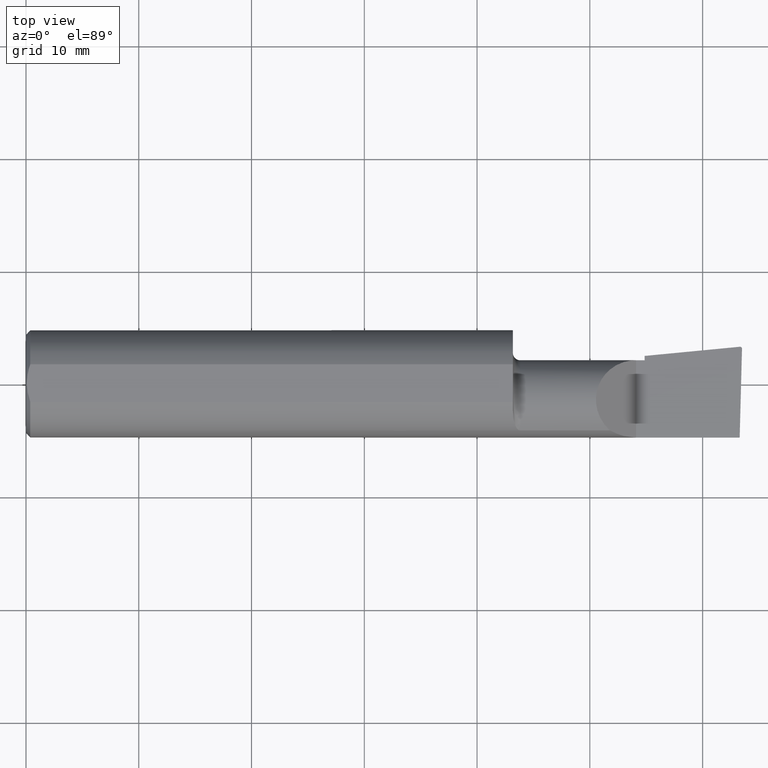
[diagram: clean part render]
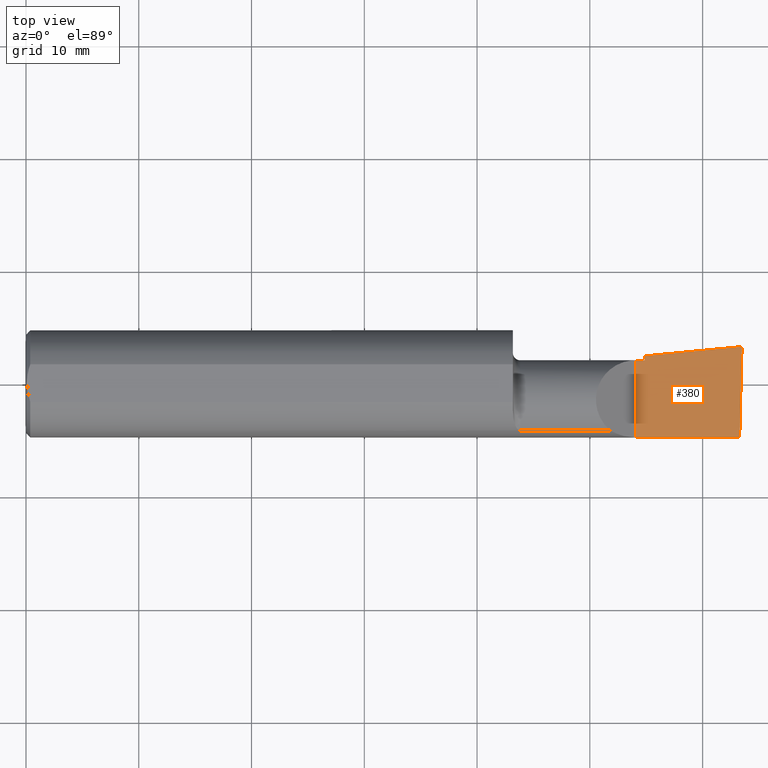
[diagram: same view with one face highlighted and labeled with its STEP entity id]
A machine part, top view. The second image highlights one B-rep face of the part: STEP entity #380.
In plain terms, the highlighted planar face has unit normal (-0, 0, -1).
Its self-contained STEP definition (entity closure, byte-faithful):
#39 = LINE ( 'NONE', #635, #343 ) ;
#48 = CARTESIAN_POINT ( 'NONE',  ( 2.493512870449283714, 0.1299961668063693288, 6.829619984160658046E-17 ) ) ;
#52 = VECTOR ( 'NONE', #591, 39.37007874015748143 ) ;
#65 = ORIENTED_EDGE ( 'NONE', *, *, #684, .F. ) ;
#68 = DIRECTION ( 'NONE',  ( 1.000000000000000000, 6.829619984160658046E-18, 0.000000000000000000 ) ) ;
#71 = CARTESIAN_POINT ( 'NONE',  ( 2.490039159128059953, -0.2497391662021650194, 6.932588350567417155E-17 ) ) ;
#86 = LINE ( 'NONE', #71, #156 ) ;
#93 = CARTESIAN_POINT ( 'NONE',  ( 2.497312560284794092, 0.1299961668063694675, 6.787656272032840287E-17 ) ) ;
#99 = CARTESIAN_POINT ( 'NONE',  ( 2.491672876940991710, -0.1873499999999999888, 6.915950918908297591E-17 ) ) ;
#115 = ORIENTED_EDGE ( 'NONE', *, *, #116, .F. ) ;
#116 = EDGE_CURVE ( 'NONE', #284, #683, #594, .T. ) ;
#128 = PLANE ( 'NONE',  #499 ) ;
#140 = DIRECTION ( 'NONE',  ( -1.000000000000000000, 0.000000000000000000, 1.033731667140896077E-16 ) ) ;
#143 = CARTESIAN_POINT ( 'NONE',  ( 2.493512870449283714, 0.1299961668063693288, 6.829619984160658046E-17 ) ) ;
#150 = CARTESIAN_POINT ( 'NONE',  ( 2.499910038027473025, 0.1272144908750952319, 6.760805322059822821E-17 ) ) ;
#156 = VECTOR ( 'NONE', #247, 39.37007874015748854 ) ;
#160 = CARTESIAN_POINT ( 'NONE',  ( -9.564882787816664242E-19, 0.08264999999999998737, 3.267291166268304703E-16 ) ) ;
#169 = CARTESIAN_POINT ( 'NONE',  ( 2.492906680581862044, 0.1299669910246663562, 6.902945873237403297E-17 ) ) ;
#177 = VECTOR ( 'NONE', #68, 39.37007874015748143 ) ;
#183 = CARTESIAN_POINT ( 'NONE',  ( 2.129999999999999893, -0.2500000000000000555, 1.065442715258197396E-16 ) ) ;
#209 = EDGE_CURVE ( 'NONE', #517, #566, #631, .T. ) ;
#215 = CARTESIAN_POINT ( 'NONE',  ( 2.160000000000000142, 0.09791172361284175563, 3.308097179827818849E-16 ) ) ;
#220 = CARTESIAN_POINT ( 'NONE',  ( 2.493512870449283714, 0.1299961668063693288, 6.829619984160658046E-17 ) ) ;
#236 = ORIENTED_EDGE ( 'NONE', *, *, #422, .T. ) ;
#242 = DIRECTION ( 'NONE',  ( -0.000000000000000000, 1.000000000000000000, -0.000000000000000000 ) ) ;
#247 = DIRECTION ( 'NONE',  ( 0.02617694830779364323, 0.9996573249755593693, -2.665804247635780349E-18 ) ) ;
#255 = CARTESIAN_POINT ( 'NONE',  ( 2.129999999999999893, -0.1873499999999999888, 1.065442715258197396E-16 ) ) ;
#279 = ORIENTED_EDGE ( 'NONE', *, *, #637, .F. ) ;
#284 = VERTEX_POINT ( 'NONE', #675 ) ;
#298 = CARTESIAN_POINT ( 'NONE',  ( 2.500000000000000000, -0.2500000000000000555, 6.829619984160658046E-17 ) ) ;
#304 = LINE ( 'NONE', #183, #354 ) ;
#322 = CARTESIAN_POINT ( 'NONE',  ( 2.499806390372749210, 0.1232563466314183787, 6.833120963331979760E-17 ) ) ;
#343 = VECTOR ( 'NONE', #371, 39.37007874015748143 ) ;
#354 = VECTOR ( 'NONE', #242, 39.37007874015748143 ) ;
#361 = EDGE_CURVE ( 'NONE', #518, #465, #86, .T. ) ;
#371 = DIRECTION ( 'NONE',  ( -1.000000000000000000, -0.000000000000000000, -0.000000000000000000 ) ) ;
#376 = CARTESIAN_POINT ( 'NONE',  ( 2.160000000000000142, -0.2500000000000000555, 1.034430765243970311E-16 ) ) ;
#380 = ADVANCED_FACE ( 'NONE', ( #411 ), #128, .F. ) ;
#391 = EDGE_CURVE ( 'NONE', #573, #566, #671, .T. ) ;
#403 = CARTESIAN_POINT ( 'NONE',  ( 0.5470260790800316464, -0.05740000000000000657, 2.701812985571356346E-16 ) ) ;
#411 = FACE_OUTER_BOUND ( 'NONE', #658, .T. ) ;
#412 = ORIENTED_EDGE ( 'NONE', *, *, #391, .F. ) ;
#414 = CARTESIAN_POINT ( 'NONE',  ( 2.499806390372749210, 0.1232563466314183787, 6.833120963331979760E-17 ) ) ;
#422 = EDGE_CURVE ( 'NONE', #465, #517, #647, .T. ) ;
#429 = LINE ( 'NONE', #376, #52 ) ;
#437 = CARTESIAN_POINT ( 'NONE',  ( 2.493310817358645792, 0.1299961668063693288, 6.829023555897999992E-17 ) ) ;
#446 = VERTEX_POINT ( 'NONE', #255 ) ;
#448 = CARTESIAN_POINT ( 'NONE',  ( 2.493108609909192364, 0.1299864346073983379, 6.831113838336319943E-17 ) ) ;
#465 = VERTEX_POINT ( 'NONE', #414 ) ;
#467 = EDGE_CURVE ( 'NONE', #518, #446, #39, .T. ) ;
#499 = AXIS2_PLACEMENT_3D ( 'NONE', #298, #622, #140 ) ;
#517 = VERTEX_POINT ( 'NONE', #48 ) ;
#518 = VERTEX_POINT ( 'NONE', #99 ) ;
#522 = VECTOR ( 'NONE', #559, 39.37007874015748143 ) ;
#557 = ORIENTED_EDGE ( 'NONE', *, *, #361, .T. ) ;
#559 = DIRECTION ( 'NONE',  ( 0.9953961983671787417, 0.09584575252022459191, -1.028972571603813720E-16 ) ) ;
#566 = VERTEX_POINT ( 'NONE', #169 ) ;
#569 = ORIENTED_EDGE ( 'NONE', *, *, #467, .F. ) ;
#573 = VERTEX_POINT ( 'NONE', #215 ) ;
#591 = DIRECTION ( 'NONE',  ( -6.829619984160658816E-18, 1.000000000000000000, 7.059994452165177242E-34 ) ) ;
#594 = LINE ( 'NONE', #160, #177 ) ;
#622 = DIRECTION ( 'NONE',  ( -1.033731667140896077E-16, 0.000000000000000000, -1.000000000000000000 ) ) ;
#631 =( BOUNDED_CURVE ( )  B_SPLINE_CURVE ( 3, ( #220, #437, #448, #649 ),
 .UNSPECIFIED., .F., .T. ) 
 B_SPLINE_CURVE_WITH_KNOTS ( ( 4, 4 ),
 ( 3.511516179717477648, 3.604018710826077942 ),
 .UNSPECIFIED. ) 
 CURVE ( )  GEOMETRIC_REPRESENTATION_ITEM ( )  RATIONAL_B_SPLINE_CURVE ( ( 1.000000000000000000, 0.9992870672494007511, 0.9992870672494007511, 1.000000000000000000 ) ) 
 REPRESENTATION_ITEM ( '' )  );
#635 = CARTESIAN_POINT ( 'NONE',  ( 3.377502344341257155E-32, -0.1873499999999999610, 3.267291166268304703E-16 ) ) ;
#637 = EDGE_CURVE ( 'NONE', #683, #573, #429, .T. ) ;
#647 =( BOUNDED_CURVE ( )  B_SPLINE_CURVE ( 3, ( #322, #150, #93, #143 ),
 .UNSPECIFIED., .F., .F. ) 
 B_SPLINE_CURVE_WITH_KNOTS ( ( 4, 4 ),
 ( 1.953092279228235029, 3.511516179717477648 ),
 .UNSPECIFIED. ) 
 CURVE ( )  GEOMETRIC_REPRESENTATION_ITEM ( )  RATIONAL_B_SPLINE_CURVE ( ( 1.000000000000000000, 0.8076450242550446967, 0.8076450242550446967, 1.000000000000000000 ) ) 
 REPRESENTATION_ITEM ( '' )  );
#649 = CARTESIAN_POINT ( 'NONE',  ( 2.492906680581862044, 0.1299669910246663562, 6.902945873237403297E-17 ) ) ;
#655 = ORIENTED_EDGE ( 'NONE', *, *, #209, .T. ) ;
#658 = EDGE_LOOP ( 'NONE', ( #557, #236, #655, #412, #279, #115, #65, #569 ) ) ;
#669 = CARTESIAN_POINT ( 'NONE',  ( 2.160000000000000142, 0.08265000000000004288, 3.267291166268305196E-16 ) ) ;
#671 = LINE ( 'NONE', #403, #522 ) ;
#675 = CARTESIAN_POINT ( 'NONE',  ( 2.129999999999999893, 0.08264999999999990410, 1.065442715258197396E-16 ) ) ;
#683 = VERTEX_POINT ( 'NONE', #669 ) ;
#684 = EDGE_CURVE ( 'NONE', #446, #284, #304, .T. ) ;